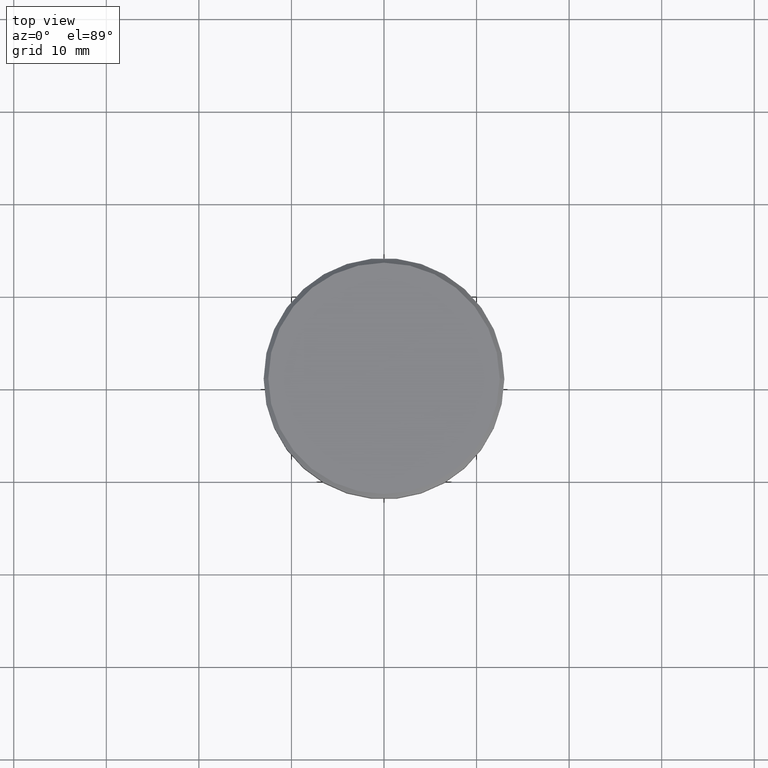
[diagram: clean part render]
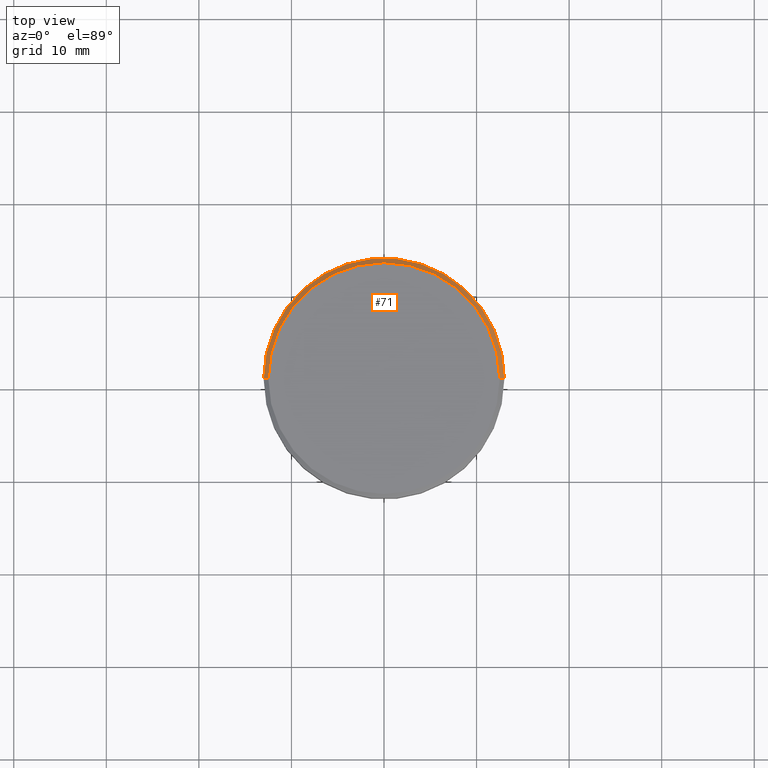
[diagram: same view with one face highlighted and labeled with its STEP entity id]
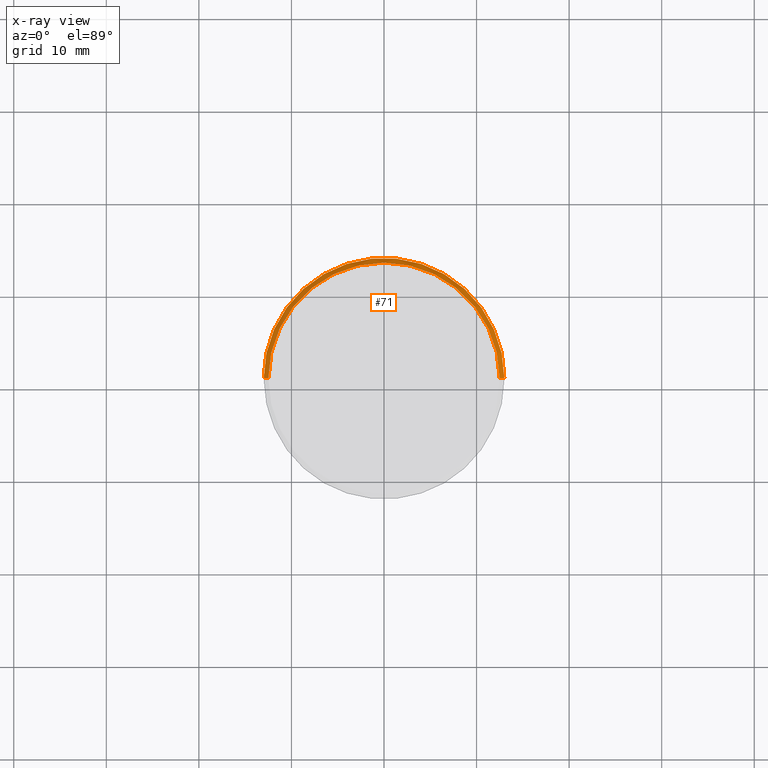
[diagram: x-ray of the same camera — body ghosted, the highlighted face saturated]
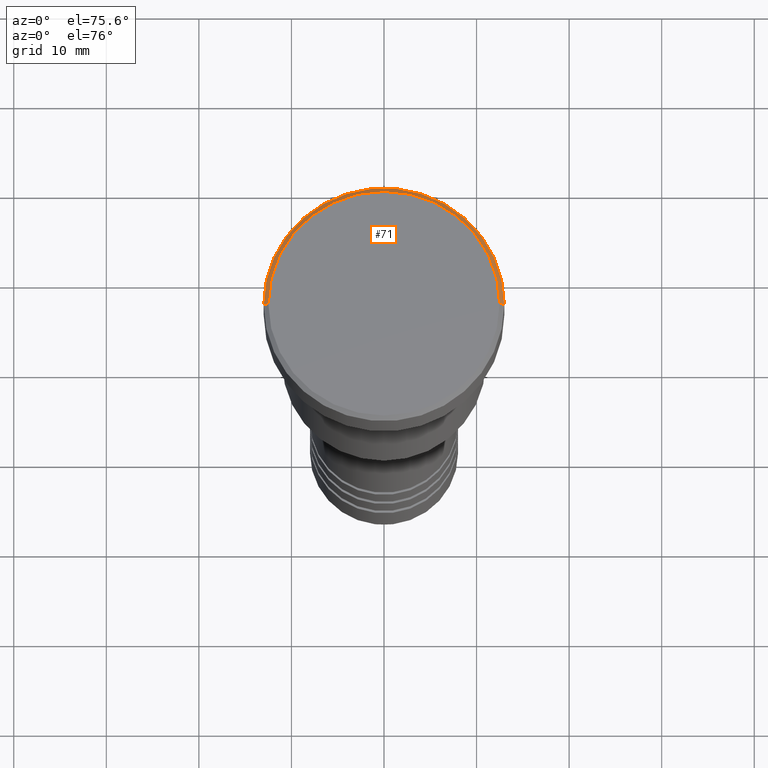
[diagram: same view with one face highlighted and labeled with its STEP entity id]
A machine part, top view. The second image highlights one B-rep face of the part: STEP entity #71.
The next image is the same camera in x-ray: the body ghosted, the highlighted face saturated — about 0% of this face is hidden behind the body in this view.
A second angle (auxiliary view) of the same face is appended — the face is thin or edge-on in the first view.
In plain terms, the highlighted conical surface has half-angle 45 deg.
Its self-contained STEP definition (entity closure, byte-faithful):
#8 = DIRECTION ( 'NONE',  ( 1.000000000000000000, 0.000000000000000000, 0.000000000000000000 ) ) ;
#10 = ORIENTED_EDGE ( 'NONE', *, *, #911, .F. ) ;
#53 = VERTEX_POINT ( 'NONE', #506 ) ;
#57 = FACE_OUTER_BOUND ( 'NONE', #604, .T. ) ;
#62 = VECTOR ( 'NONE', #121, 1000.000000000000000 ) ;
#71 = ADVANCED_FACE ( 'NONE', ( #57 ), #625, .T. ) ;
#121 = DIRECTION ( 'NONE',  ( 0.7071067811865487940, 8.659560562354948882E-17, -0.7071067811865463515 ) ) ;
#134 = DIRECTION ( 'NONE',  ( -1.000000000000000000, 0.000000000000000000, 0.000000000000000000 ) ) ;
#221 = CARTESIAN_POINT ( 'NONE',  ( -12.49999999999999645, 0.000000000000000000, 0.000000000000000000 ) ) ;
#223 = ORIENTED_EDGE ( 'NONE', *, *, #572, .F. ) ;
#232 = DIRECTION ( 'NONE',  ( -0.7071067811865487940, 0.000000000000000000, -0.7071067811865463515 ) ) ;
#245 = CARTESIAN_POINT ( 'NONE',  ( -13.00000000000000000, 1.592040838891559095E-15, -0.5000000000000004441 ) ) ;
#336 = DIRECTION ( 'NONE',  ( -0.000000000000000000, -0.000000000000000000, 1.000000000000000000 ) ) ;
#339 = ORIENTED_EDGE ( 'NONE', *, *, #779, .F. ) ;
#388 = VERTEX_POINT ( 'NONE', #221 ) ;
#415 = CARTESIAN_POINT ( 'NONE',  ( 0.000000000000000000, 0.000000000000000000, 0.000000000000000000 ) ) ;
#457 = VECTOR ( 'NONE', #232, 1000.000000000000000 ) ;
#459 = AXIS2_PLACEMENT_3D ( 'NONE', #1010, #551, #8 ) ;
#460 = ORIENTED_EDGE ( 'NONE', *, *, #698, .T. ) ;
#506 = CARTESIAN_POINT ( 'NONE',  ( 12.49999999999999645, 1.561424668912875111E-15, 0.000000000000000000 ) ) ;
#533 = LINE ( 'NONE', #906, #457 ) ;
#551 = DIRECTION ( 'NONE',  ( 0.000000000000000000, 0.000000000000000000, -1.000000000000000000 ) ) ;
#555 = LINE ( 'NONE', #616, #62 ) ;
#572 = EDGE_CURVE ( 'NONE', #388, #1110, #533, .T. ) ;
#604 = EDGE_LOOP ( 'NONE', ( #339, #460, #10, #223 ) ) ;
#616 = CARTESIAN_POINT ( 'NONE',  ( 12.49999999999999645, 1.530808498934191127E-15, 0.000000000000000000 ) ) ;
#625 = CONICAL_SURFACE ( 'NONE', #706, 12.49999999999999645, 0.7853981633974500554 ) ;
#698 = EDGE_CURVE ( 'NONE', #53, #996, #555, .T. ) ;
#706 = AXIS2_PLACEMENT_3D ( 'NONE', #1156, #958, #134 ) ;
#743 = AXIS2_PLACEMENT_3D ( 'NONE', #415, #336, #759 ) ;
#759 = DIRECTION ( 'NONE',  ( 1.000000000000000000, 0.000000000000000000, 0.000000000000000000 ) ) ;
#779 = EDGE_CURVE ( 'NONE', #53, #388, #1043, .T. ) ;
#906 = CARTESIAN_POINT ( 'NONE',  ( -12.49999999999999645, 0.000000000000000000, 0.000000000000000000 ) ) ;
#911 = EDGE_CURVE ( 'NONE', #1110, #996, #984, .T. ) ;
#958 = DIRECTION ( 'NONE',  ( 0.000000000000000000, 0.000000000000000000, -1.000000000000000000 ) ) ;
#984 = CIRCLE ( 'NONE', #459, 13.00000000000000000 ) ;
#996 = VERTEX_POINT ( 'NONE', #1129 ) ;
#1010 = CARTESIAN_POINT ( 'NONE',  ( 0.000000000000000000, 0.000000000000000000, -0.5000000000000004441 ) ) ;
#1043 = CIRCLE ( 'NONE', #743, 12.49999999999999645 ) ;
#1110 = VERTEX_POINT ( 'NONE', #245 ) ;
#1129 = CARTESIAN_POINT ( 'NONE',  ( 13.00000000000000000, 0.000000000000000000, -0.5000000000000004441 ) ) ;
#1156 = CARTESIAN_POINT ( 'NONE',  ( 0.000000000000000000, 0.000000000000000000, 0.000000000000000000 ) ) ;